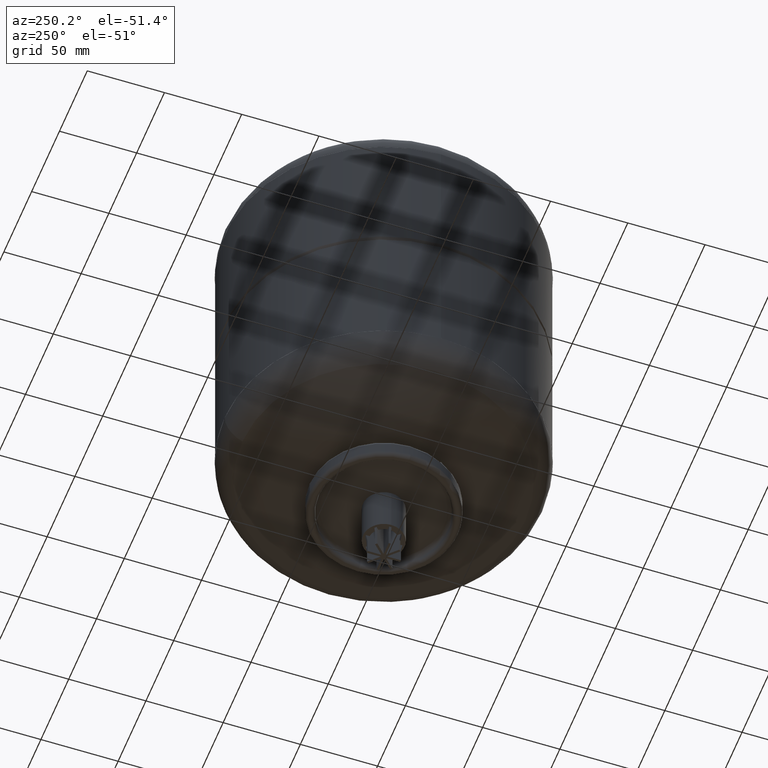
[diagram: clean part render]
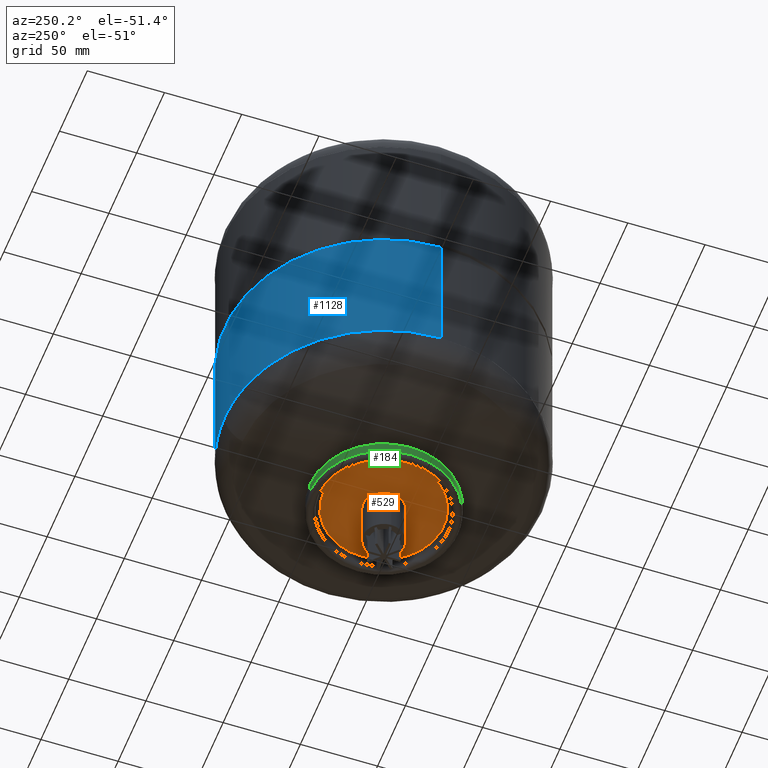
[diagram: same view with three faces highlighted in distinct colors, each labeled with its STEP entity id]
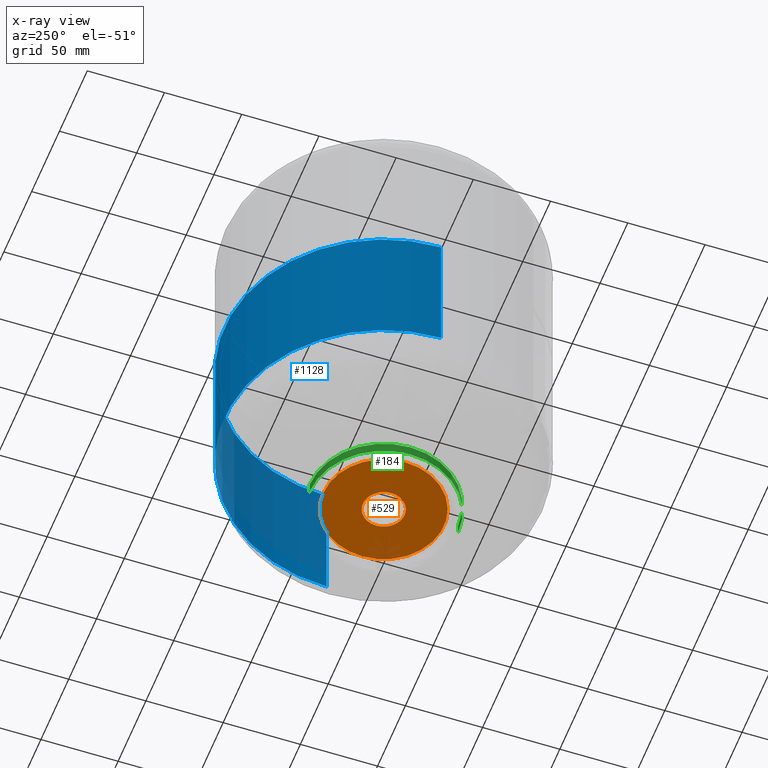
[diagram: x-ray of the same camera — body ghosted, the three highlighted faces saturated]
A machine part, auxiliary view with three faces highlighted in distinct colors.
The next image is the same camera in x-ray (body ghosted, the three faces saturated) — at least one of them is partly hidden behind the body in this view.
Their STEP definitions:

[orange] entity #529 — the highlighted planar face has unit normal (0, 0, -1).
#275=CARTESIAN_POINT('',(13.449999999999999,0.0,45.999999999999986));
#276=VERTEX_POINT('',#275);
#285=CARTESIAN_POINT('',(-13.449999999999999,1.647096E-015,45.999999999999993));
#286=VERTEX_POINT('',#285);
#287=CARTESIAN_POINT('',(0.0,0.0,45.999999999999993));
#288=DIRECTION('',(0.0,0.0,-1.0));
#289=DIRECTION('',(1.0,0.0,0.0));
#290=AXIS2_PLACEMENT_3D('',#287,#288,#289);
#291=CIRCLE('',#290,13.449999999999999);
#292=EDGE_CURVE('',#276,#286,#291,.T.);
#409=CARTESIAN_POINT('',(-39.000000000000007,3.136209E-016,46.0));
#410=VERTEX_POINT('',#409);
#436=CARTESIAN_POINT('',(39.000000000000007,-4.462344E-015,46.0));
#437=VERTEX_POINT('',#436);
#445=CARTESIAN_POINT('',(0.0,39.0,46.0));
#446=VERTEX_POINT('',#445);
#447=CARTESIAN_POINT('',(0.0,0.0,46.0));
#448=DIRECTION('',(0.0,0.0,-1.0));
#449=DIRECTION('',(0.0,1.0,0.0));
#450=AXIS2_PLACEMENT_3D('',#447,#448,#449);
#451=CIRCLE('',#450,39.000000000000007);
#452=EDGE_CURVE('',#446,#437,#451,.T.);
#454=CARTESIAN_POINT('',(0.0,0.0,46.0));
#455=DIRECTION('',(0.0,0.0,-1.0));
#456=DIRECTION('',(0.0,1.0,0.0));
#457=AXIS2_PLACEMENT_3D('',#454,#455,#456);
#458=CIRCLE('',#457,39.000000000000007);
#459=EDGE_CURVE('',#410,#446,#458,.T.);
#503=CARTESIAN_POINT('',(0.0,19.500000000000000,45.999999999999993));
#504=DIRECTION('',(0.0,0.0,-1.0));
#505=DIRECTION('',(-1.0,0.0,0.0));
#506=AXIS2_PLACEMENT_3D('',#503,#504,#505);
#507=PLANE('',#506);
#508=ORIENTED_EDGE('',*,*,#452,.T.);
#509=CARTESIAN_POINT('',(0.0,0.0,46.0));
#510=DIRECTION('',(0.0,0.0,-1.0));
#511=DIRECTION('',(0.0,1.0,0.0));
#512=AXIS2_PLACEMENT_3D('',#509,#510,#511);
#513=CIRCLE('',#512,39.000000000000007);
#514=EDGE_CURVE('',#437,#410,#513,.T.);
#515=ORIENTED_EDGE('',*,*,#514,.T.);
#516=ORIENTED_EDGE('',*,*,#459,.T.);
#517=EDGE_LOOP('',(#508,#515,#516));
#518=FACE_OUTER_BOUND('',#517,.T.);
#519=CARTESIAN_POINT('',(0.0,0.0,45.999999999999993));
#520=DIRECTION('',(0.0,0.0,-1.0));
#521=DIRECTION('',(1.0,0.0,0.0));
#522=AXIS2_PLACEMENT_3D('',#519,#520,#521);
#523=CIRCLE('',#522,13.449999999999999);
#524=EDGE_CURVE('',#286,#276,#523,.T.);
#525=ORIENTED_EDGE('',*,*,#524,.F.);
#526=ORIENTED_EDGE('',*,*,#292,.F.);
#527=EDGE_LOOP('',(#525,#526));
#528=FACE_BOUND('',#527,.T.);
#529=ADVANCED_FACE('',(#518,#528),#507,.T.);

[blue] entity #1128 — the highlighted cylindrical surface (partial cylindrical patch) has radius 103 mm, axis along (0, 0, 1).
#992=CARTESIAN_POINT('',(102.999999999999990,0.0,180.499999999999970));
#993=VERTEX_POINT('',#992);
#994=CARTESIAN_POINT('',(102.999999999999970,0.0,91.999999999999943));
#995=VERTEX_POINT('',#994);
#996=CARTESIAN_POINT('',(102.999999999999990,0.0,180.499999999999970));
#997=DIRECTION('',(0.0,0.0,-1.0));
#998=VECTOR('',#997,88.500000000000028);
#999=LINE('',#996,#998);
#1000=EDGE_CURVE('',#993,#995,#999,.T.);
#1002=CARTESIAN_POINT('',(-102.999999999999970,-1.261345E-014,180.499999999999970));
#1003=VERTEX_POINT('',#1002);
#1011=CARTESIAN_POINT('',(-102.999999999999970,1.261345E-014,91.999999999999943));
#1012=VERTEX_POINT('',#1011);
#1013=CARTESIAN_POINT('',(-102.999999999999970,-1.261345E-014,180.499999999999970));
#1014=DIRECTION('',(0.0,0.0,-1.0));
#1015=VECTOR('',#1014,88.500000000000028);
#1016=LINE('',#1013,#1015);
#1017=EDGE_CURVE('',#1003,#1012,#1016,.T.);
#1100=CARTESIAN_POINT('',(0.0,0.0,91.999999999999943));
#1101=DIRECTION('',(0.0,0.0,-1.0));
#1102=DIRECTION('',(1.0,0.0,0.0));
#1103=AXIS2_PLACEMENT_3D('',#1100,#1101,#1102);
#1104=CIRCLE('',#1103,102.999999999999970);
#1105=EDGE_CURVE('',#1012,#995,#1104,.T.);
#1111=CARTESIAN_POINT('',(0.0,0.0,131.999999999999940));
#1112=DIRECTION('',(0.0,0.0,1.0));
#1113=DIRECTION('',(1.0,0.0,0.0));
#1114=AXIS2_PLACEMENT_3D('',#1111,#1112,#1113);
#1115=CYLINDRICAL_SURFACE('',#1114,102.999999999999970);
#1116=ORIENTED_EDGE('',*,*,#1000,.T.);
#1117=ORIENTED_EDGE('',*,*,#1105,.F.);
#1118=ORIENTED_EDGE('',*,*,#1017,.F.);
#1119=CARTESIAN_POINT('',(0.0,0.0,180.499999999999970));
#1120=DIRECTION('',(0.0,0.0,1.0));
#1121=DIRECTION('',(1.0,0.0,0.0));
#1122=AXIS2_PLACEMENT_3D('',#1119,#1120,#1121);
#1123=CIRCLE('',#1122,102.999999999999990);
#1124=EDGE_CURVE('',#993,#1003,#1123,.T.);
#1125=ORIENTED_EDGE('',*,*,#1124,.F.);
#1126=EDGE_LOOP('',(#1116,#1117,#1118,#1125));
#1127=FACE_OUTER_BOUND('',#1126,.T.);
#1128=ADVANCED_FACE('',(#1127),#1115,.T.);

[green] entity #184 — the highlighted cylindrical surface (partial cylindrical patch) has radius 48 mm, axis along (0, -0, -1).
#125=CARTESIAN_POINT('',(0.0,0.0,47.0));
#126=DIRECTION('',(0.0,-1.045403E-016,-1.0));
#127=DIRECTION('',(0.0,1.0,0.0));
#128=AXIS2_PLACEMENT_3D('',#125,#126,#127);
#129=CYLINDRICAL_SURFACE('',#128,48.000000000000007);
#130=CARTESIAN_POINT('',(0.0,48.0,42.999999999999993));
#131=VERTEX_POINT('',#130);
#132=CARTESIAN_POINT('',(0.0,48.0,50.000000000000007));
#133=VERTEX_POINT('',#132);
#134=CARTESIAN_POINT('',(0.0,48.0,42.999999999999993));
#135=DIRECTION('',(0.0,0.0,1.0));
#136=VECTOR('',#135,7.000000000000014);
#137=LINE('',#134,#136);
#138=EDGE_CURVE('',#131,#133,#137,.T.);
#139=ORIENTED_EDGE('',*,*,#138,.F.);
#140=CARTESIAN_POINT('',(-48.000000000000007,0.0,43.0));
#141=VERTEX_POINT('',#140);
#142=CARTESIAN_POINT('',(0.0,0.0,43.0));
#143=DIRECTION('',(0.0,0.0,-1.0));
#144=DIRECTION('',(0.0,1.0,0.0));
#145=AXIS2_PLACEMENT_3D('',#142,#143,#144);
#146=CIRCLE('',#145,48.000000000000007);
#147=EDGE_CURVE('',#141,#131,#146,.T.);
#148=ORIENTED_EDGE('',*,*,#147,.F.);
#149=CARTESIAN_POINT('',(-5.878110E-015,-48.000000000000007,43.0));
#150=VERTEX_POINT('',#149);
#151=CARTESIAN_POINT('',(0.0,0.0,43.0));
#152=DIRECTION('',(0.0,0.0,-1.0));
#153=DIRECTION('',(0.0,1.0,0.0));
#154=AXIS2_PLACEMENT_3D('',#151,#152,#153);
#155=CIRCLE('',#154,48.000000000000007);
#156=EDGE_CURVE('',#150,#141,#155,.T.);
#157=ORIENTED_EDGE('',*,*,#156,.F.);
#158=CARTESIAN_POINT('',(-5.878110E-015,-48.000000000000007,50.000000000000014));
#159=VERTEX_POINT('',#158);
#160=CARTESIAN_POINT('',(-5.878110E-015,-48.000000000000007,43.0));
#161=DIRECTION('',(0.0,0.0,1.0));
#162=VECTOR('',#161,7.000000000000014);
#163=LINE('',#160,#162);
#164=EDGE_CURVE('',#150,#159,#163,.T.);
#165=ORIENTED_EDGE('',*,*,#164,.T.);
#166=CARTESIAN_POINT('',(-48.000000000000007,0.0,50.000000000000007));
#167=VERTEX_POINT('',#166);
#168=CARTESIAN_POINT('',(0.0,0.0,50.000000000000007));
#169=DIRECTION('',(0.0,0.0,-1.0));
#170=DIRECTION('',(0.0,1.0,0.0));
#171=AXIS2_PLACEMENT_3D('',#168,#169,#170);
#172=CIRCLE('',#171,48.000000000000007);
#173=EDGE_CURVE('',#159,#167,#172,.T.);
#174=ORIENTED_EDGE('',*,*,#173,.T.);
#175=CARTESIAN_POINT('',(0.0,0.0,50.000000000000007));
#176=DIRECTION('',(0.0,0.0,-1.0));
#177=DIRECTION('',(0.0,1.0,0.0));
#178=AXIS2_PLACEMENT_3D('',#175,#176,#177);
#179=CIRCLE('',#178,48.000000000000007);
#180=EDGE_CURVE('',#167,#133,#179,.T.);
#181=ORIENTED_EDGE('',*,*,#180,.T.);
#182=EDGE_LOOP('',(#139,#148,#157,#165,#174,#181));
#183=FACE_OUTER_BOUND('',#182,.T.);
#184=ADVANCED_FACE('',(#183),#129,.T.);